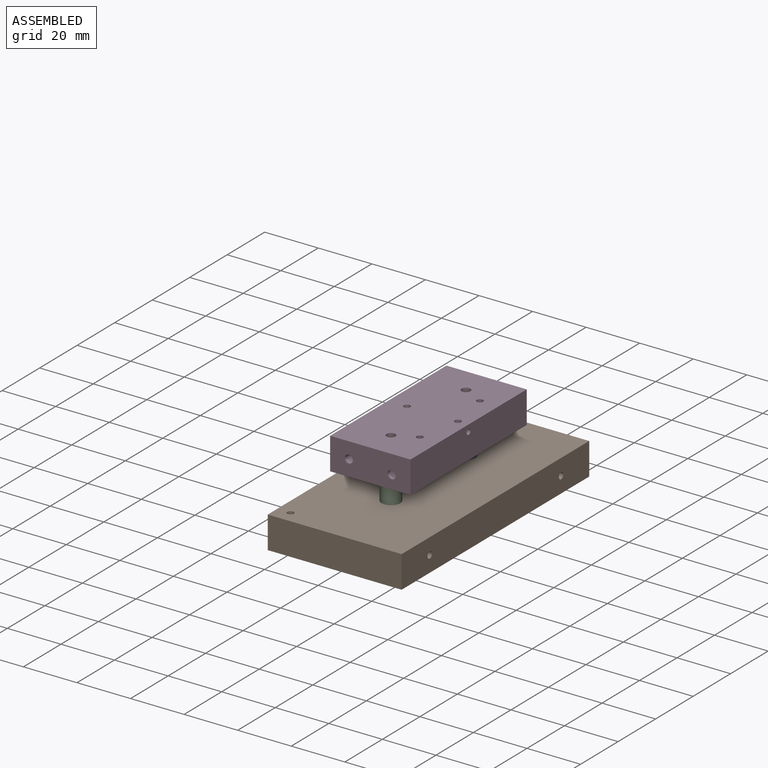
[diagram: assembled view]
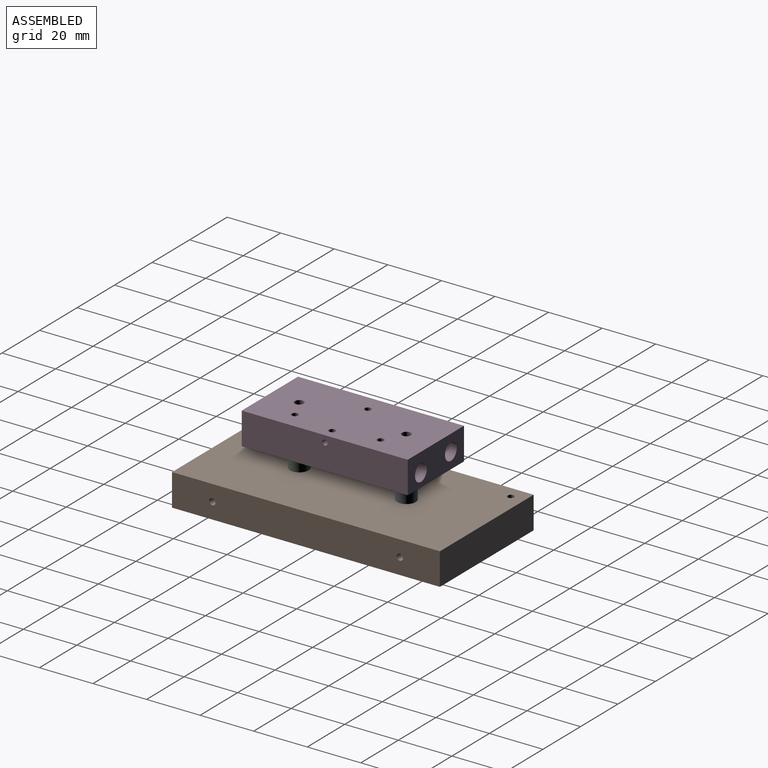
[diagram: assembled view, second angle]
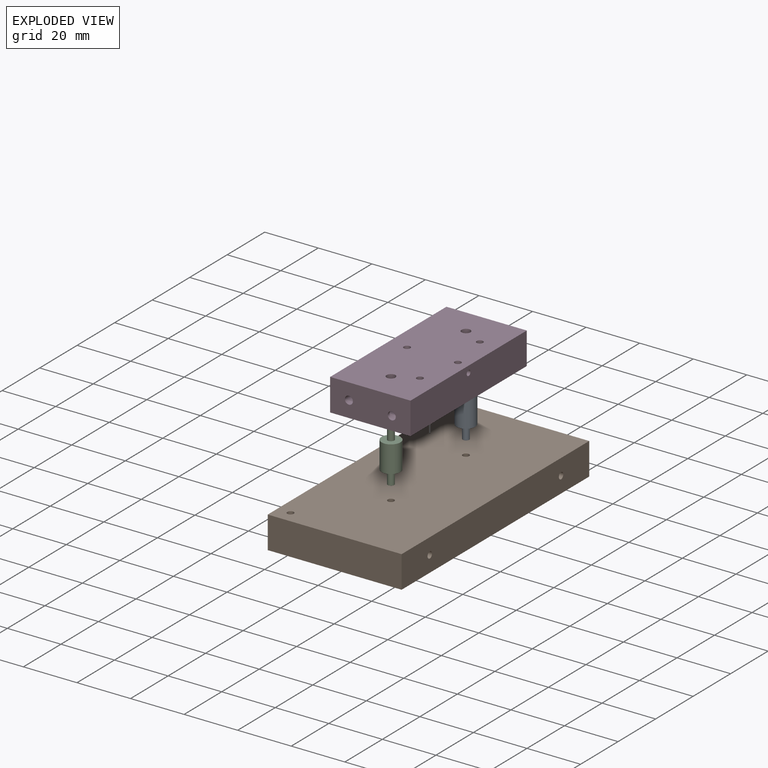
[diagram: exploded view]
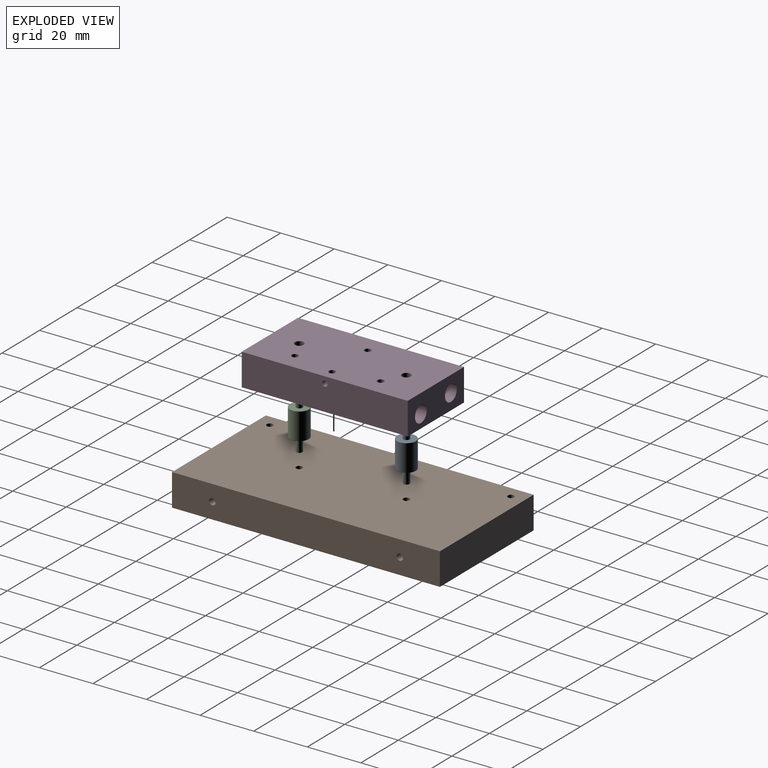
[diagram: exploded view, second angle]
ASSEMBLY  parts=4 mates=7
PART A: 7 faces, bbox 7x7x20 mm
  f0: cylinder r=1.2mm len=5mm, axis (0,0,-1), area 37.7mm2, adj f1,f3
  f1: plane 2.4x2.4mm, normal (0,0,1), area 4.5mm2, adj f0
  f2: cylinder r=3.5mm len=10mm, axis (0,0,-1), area 219.9mm2, adj f3,f4
  f3: plane 7x7mm, normal (0,0,1), area 34mm2, adj f0,f2
  f4: plane 7x7mm, normal (0,0,-1), area 34mm2, adj f2,f6
  f5: plane 2.4x2.4mm, normal (0,0,-1), area 4.5mm2, adj f6
  f6: cylinder r=1.2mm len=5mm, axis (0,0,-1), area 37.7mm2, adj f4,f5
PART B: 22 faces, bbox 50x100x12 mm
  f0: plane 100x12mm, normal (1,0,0), area 1191mm2, adj f1,f3,f4,f5,f10,f12
  f1: plane 50x12mm, normal (0,1,0), area 600mm2, adj f0,f2,f4,f5
  f2: plane 100x12mm, normal (-1,0,0), area 1191mm2, adj f1,f3,f4,f5,f14,f16
  f3: plane 50x12mm, normal (0,-1,0), area 600mm2, adj f0,f2,f4,f5
  f4: plane 100x50mm, normal (0,0,1), area 4981.9mm2, adj f0,f1,f2,f3,f6,f8,f18,f20
  f5: plane 100x50mm, normal (0,0,-1), area 5000mm2, adj f0,f1,f2,f3
  f6: cylinder r=1.2mm len=6mm, axis (0,0,1), area 45.2mm2, adj f4,f7
  f7: cone r=0mm half-angle=59deg, axis (0,0,1), area 5.3mm2, adj f6
  f8: cylinder r=1.2mm len=6mm, axis (0,0,1), area 45.2mm2, adj f4,f9
  f9: cone r=0mm half-angle=59deg, axis (0,0,1), area 5.3mm2, adj f8
  f10: cylinder r=1.2mm len=6mm, axis (1,0,0), area 45.2mm2, adj f0,f11
  f11: cone r=0mm half-angle=59deg, axis (1,0,0), area 5.3mm2, adj f10
  f12: cylinder r=1.2mm len=6mm, axis (1,0,0), area 45.2mm2, adj f0,f13
  f13: cone r=0mm half-angle=59deg, axis (1,0,0), area 5.3mm2, adj f12
  f14: cylinder r=1.2mm len=6mm, axis (-1,0,0), area 45.2mm2, adj f2,f15
  f15: cone r=0mm half-angle=59deg, axis (-1,0,0), area 5.3mm2, adj f14
  f16: cylinder r=1.2mm len=6mm, axis (-1,0,0), area 45.2mm2, adj f2,f17
  f17: cone r=0mm half-angle=59deg, axis (-1,0,0), area 5.3mm2, adj f16
  f18: cylinder r=1.2mm len=6mm, axis (0,0,1), area 45.2mm2, adj f4,f19
  f19: cone r=0mm half-angle=59deg, axis (0,0,1), area 5.3mm2, adj f18
  f20: cylinder r=1.2mm len=6mm, axis (0,0,1), area 45.2mm2, adj f4,f21
  f21: cone r=0mm half-angle=59deg, axis (0,0,1), area 5.3mm2, adj f20
PART C: same geometry as A
PART D: 22 faces, bbox 30x62x12 mm
  f0: cone r=0mm half-angle=59deg, axis (0,-1,0), area 28.1mm2, adj f3,f21
  f1: cone r=0mm half-angle=59deg, axis (0,-1,0), area 28.1mm2, adj f4,f20
  f2: cylinder r=1mm len=3.69mm, axis (-1,0,0), area 20.5mm2, adj f7,f16,f17
  f3: cylinder r=3.15mm len=51mm, axis (0,-1,0), area 1004.8mm2, adj f0,f10,f15
  f4: cylinder r=3.15mm len=60mm, axis (0,-1,0), area 1178.3mm2, adj f1,f10,f13,f14
  f5: plane 62x12mm, normal (1,0,0), area 744mm2, adj f6,f8,f9,f10
  f6: plane 62x30mm, normal (0,0,1), area 1824.8mm2, adj f5,f7,f9,f10,f11,f12,f13,f14
  f7: plane 62x12mm, normal (-1,0,0), area 740.9mm2, adj f2,f6,f8,f9,f10
  f8: plane 62x30mm, normal (0,0,-1), area 1842.9mm2, adj f5,f7,f9,f10,f11,f12
  f9: plane 30x12mm, normal (0,1,0), area 345.9mm2, adj f5,f6,f7,f8,f20,f21
  f10: plane 30x12mm, normal (0,-1,0), area 297.7mm2, adj f3,f4,f5,f6,f7,f8
  f11: cylinder r=1.65mm len=12mm, axis (0,0,-1), area 124.4mm2, adj f6,f8
  f12: cylinder r=1.65mm len=12mm, axis (0,0,-1), area 124.4mm2, adj f6,f8
  f13: cylinder r=1.2mm len=4.09mm, axis (0,0,1), area 29.9mm2, adj f4,f6
  f14: cylinder r=1.2mm len=4.09mm, axis (0,0,1), area 29.9mm2, adj f4,f6
  f15: cylinder r=1.2mm len=3.09mm, axis (0,0,1), area 22.4mm2, adj f3,f6
  f16: cylinder r=1.2mm len=3mm, axis (0,0,1), area 16.9mm2, adj f2,f6,f17,f19
  f17: cone r=0mm half-angle=59deg, axis (0,0,1), area 2.5mm2, adj f2,f16,f19
  f18: cone r=0mm half-angle=59deg, axis (-1,0,0), area 3.7mm2, adj f19
  f19: cylinder r=1mm len=3.69mm, axis (-1,0,0), area 20.5mm2, adj f16,f17,f18
  f20: cylinder r=1.5mm len=3mm, axis (0,-1,0), area 9.5mm2, adj f1,f9
  f21: cylinder r=1.5mm len=10.01mm, axis (0,-1,0), area 94.3mm2, adj f0,f9
PLACE A rot(axis=(1,0,0),180deg) t=(-33.27,18.96,9.51)mm
PLACE B t=(-0.08,-1.04,-7.49)mm fixed
PLACE C rot(axis=(1,0,0),180deg) t=(-33.27,-21.04,9.51)mm
PLACE D rot(axis=(0,0,1),180deg) t=(-0.08,29.96,20.51)mm
MATE planar C.f0 <-> B.f4  axis (0,0,-1) through (-0.08,-21.04,4.51)mm
MATE planar A.f0 <-> B.f4  axis (0,0,-1) through (-0.08,18.96,4.51)mm
MATE cylindrical D.f11 <-> A.f0  axis (0,0,-1) through (-0.08,18.96,14.51)mm
MATE cylindrical D.f12 <-> C.f0  axis (0,0,-1) through (-0.08,-21.04,14.51)mm
MATE planar D.f8 <-> C.f0  axis (0,0,-1) through (-0.08,-1.04,14.51)mm
MATE cylindrical B.f6 <-> A.f0  axis (0,0,1) through (-0.08,18.96,4.51)mm
MATE slider C.f0 <-> B.f8  axis (0,0,-1) through (-0.08,-21.04,-0.49)mm
